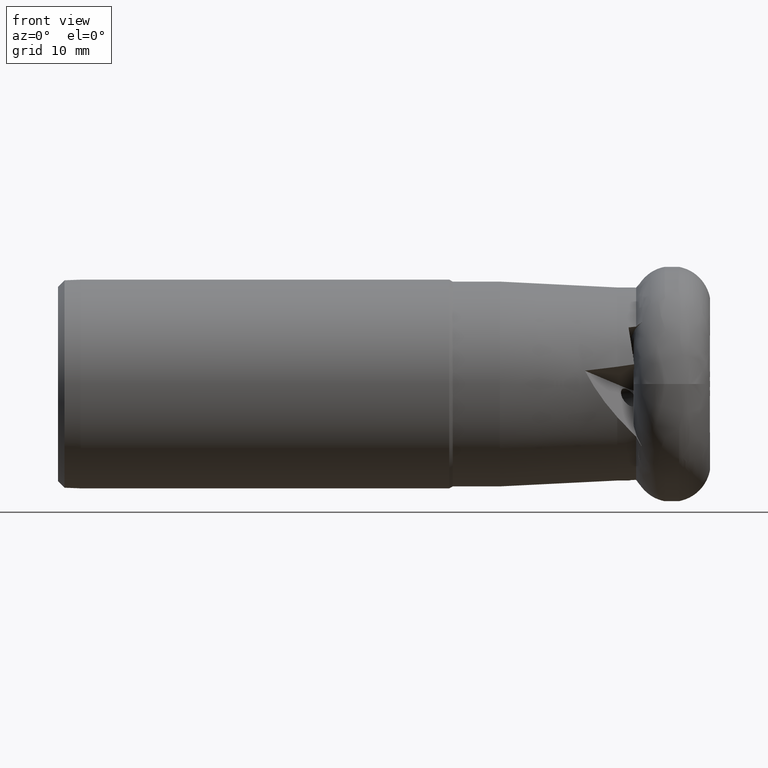
[diagram: clean part render]
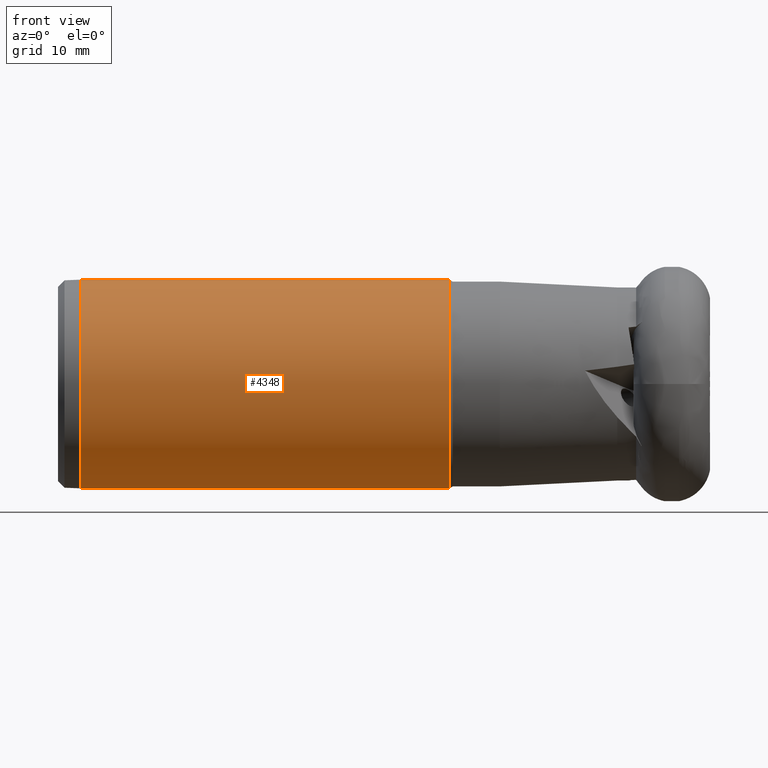
[diagram: same view with one face highlighted and labeled with its STEP entity id]
A machine part, front view. The second image highlights one B-rep face of the part: STEP entity #4348.
In plain terms, the highlighted cylindrical surface (partial cylindrical patch) has radius 16 mm, axis along (1, -0, -0).
Its self-contained STEP definition (entity closure, byte-faithful):
#176 = AXIS2_PLACEMENT_3D ( 'NONE', #2602, #2207, #3055 ) ;
#559 = DIRECTION ( 'NONE',  ( 1.000000000000000000, -0.0000000000000000000, -0.0000000000000000000 ) ) ;
#735 = VERTEX_POINT ( 'NONE', #2618 ) ;
#854 = EDGE_CURVE ( 'NONE', #4621, #1218, #1786, .T. ) ;
#1054 = DIRECTION ( 'NONE',  ( 0.0000000000000000000, 0.0000000000000000000, -1.000000000000000000 ) ) ;
#1066 = CIRCLE ( 'NONE', #4028, 15.99999999999999300 ) ;
#1132 = EDGE_CURVE ( 'NONE', #735, #1218, #1066, .T. ) ;
#1210 = CYLINDRICAL_SURFACE ( 'NONE', #176, 15.99999999999998900 ) ;
#1218 = VERTEX_POINT ( 'NONE', #3082 ) ;
#1236 = CARTESIAN_POINT ( 'NONE',  ( -95.25000000000000000, 1.959434878635763600E-015, 15.99999999999998600 ) ) ;
#1407 = CIRCLE ( 'NONE', #3952, 15.99999999999998600 ) ;
#1467 = ORIENTED_EDGE ( 'NONE', *, *, #854, .T. ) ;
#1543 = CARTESIAN_POINT ( 'NONE',  ( -95.25000000000000000, 0.0000000000000000000, 0.0000000000000000000 ) ) ;
#1569 = DIRECTION ( 'NONE',  ( 0.0000000000000000000, 0.0000000000000000000, -1.000000000000000000 ) ) ;
#1786 = LINE ( 'NONE', #3667, #2665 ) ;
#1832 = EDGE_LOOP ( 'NONE', ( #2643, #2614, #1467, #5561 ) ) ;
#2207 = DIRECTION ( 'NONE',  ( 1.000000000000000000, -0.0000000000000000000, -0.0000000000000000000 ) ) ;
#2602 = CARTESIAN_POINT ( 'NONE',  ( 0.0000000000000000000, 0.0000000000000000000, 0.0000000000000000000 ) ) ;
#2614 = ORIENTED_EDGE ( 'NONE', *, *, #2992, .T. ) ;
#2618 = CARTESIAN_POINT ( 'NONE',  ( -38.75000000000000700, 1.959434878635764300E-015, 15.99999999999999300 ) ) ;
#2643 = ORIENTED_EDGE ( 'NONE', *, *, #4320, .F. ) ;
#2644 = CARTESIAN_POINT ( 'NONE',  ( 0.0000000000000000000, 1.959434878635763900E-015, 15.99999999999998900 ) ) ;
#2665 = VECTOR ( 'NONE', #4198, 1000.000000000000000 ) ;
#2948 = LINE ( 'NONE', #2644, #3660 ) ;
#2992 = EDGE_CURVE ( 'NONE', #4312, #4621, #1407, .T. ) ;
#3055 = DIRECTION ( 'NONE',  ( 0.0000000000000000000, 0.0000000000000000000, -1.000000000000000000 ) ) ;
#3082 = CARTESIAN_POINT ( 'NONE',  ( -38.75000000000000700, 0.0000000000000000000, -15.99999999999999300 ) ) ;
#3434 = CARTESIAN_POINT ( 'NONE',  ( -95.25000000000000000, 0.0000000000000000000, -15.99999999999998600 ) ) ;
#3596 = FACE_OUTER_BOUND ( 'NONE', #1832, .T. ) ;
#3660 = VECTOR ( 'NONE', #4051, 1000.000000000000000 ) ;
#3667 = CARTESIAN_POINT ( 'NONE',  ( 0.0000000000000000000, 0.0000000000000000000, -15.99999999999998900 ) ) ;
#3872 = DIRECTION ( 'NONE',  ( 1.000000000000000000, -0.0000000000000000000, -0.0000000000000000000 ) ) ;
#3952 = AXIS2_PLACEMENT_3D ( 'NONE', #1543, #559, #1054 ) ;
#4028 = AXIS2_PLACEMENT_3D ( 'NONE', #4839, #3872, #1569 ) ;
#4051 = DIRECTION ( 'NONE',  ( 1.000000000000000000, -0.0000000000000000000, -0.0000000000000000000 ) ) ;
#4198 = DIRECTION ( 'NONE',  ( 1.000000000000000000, -0.0000000000000000000, -0.0000000000000000000 ) ) ;
#4312 = VERTEX_POINT ( 'NONE', #1236 ) ;
#4320 = EDGE_CURVE ( 'NONE', #4312, #735, #2948, .T. ) ;
#4348 = ADVANCED_FACE ( 'Fl�che9', ( #3596 ), #1210, .T. ) ;
#4621 = VERTEX_POINT ( 'NONE', #3434 ) ;
#4839 = CARTESIAN_POINT ( 'NONE',  ( -38.75000000000000700, 0.0000000000000000000, 0.0000000000000000000 ) ) ;
#5561 = ORIENTED_EDGE ( 'NONE', *, *, #1132, .F. ) ;